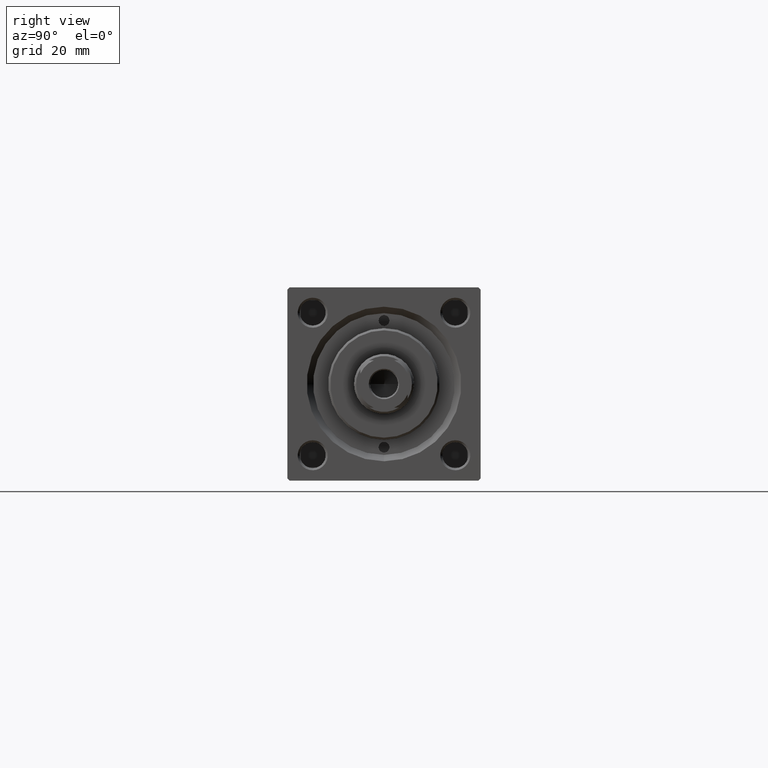
[diagram: clean part render]
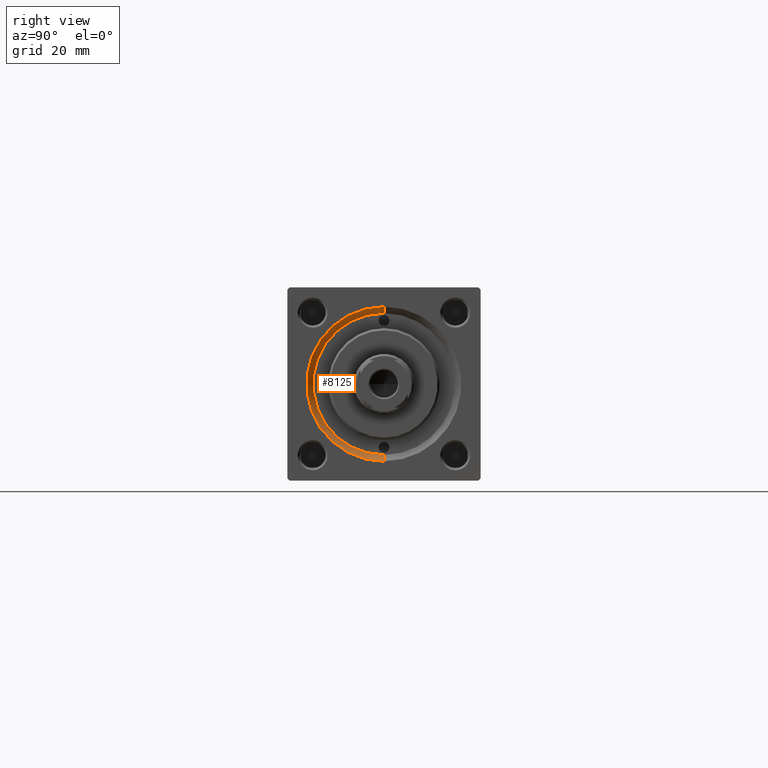
[diagram: same view with one face highlighted and labeled with its STEP entity id]
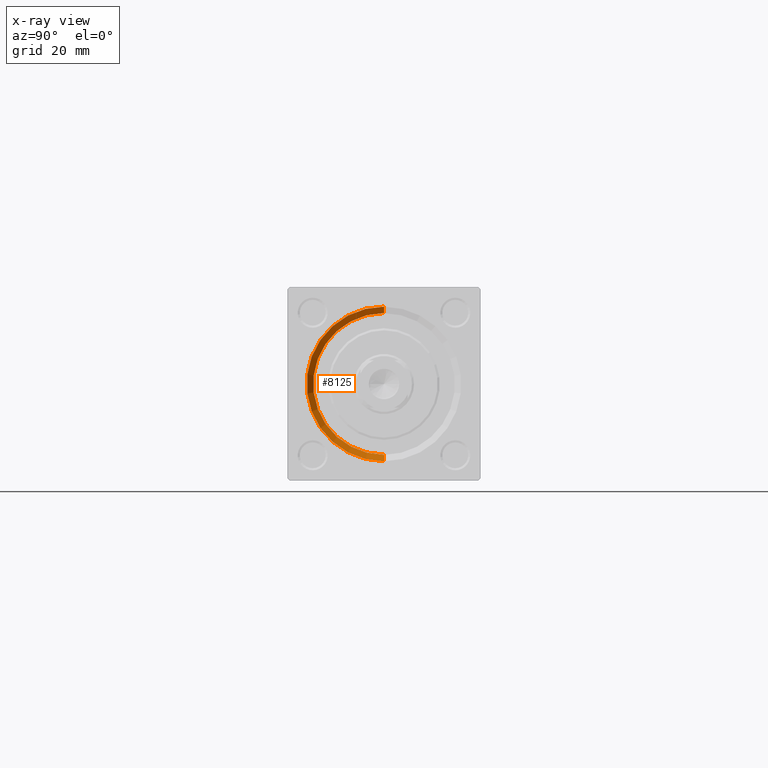
[diagram: x-ray of the same camera — body ghosted, the highlighted face saturated]
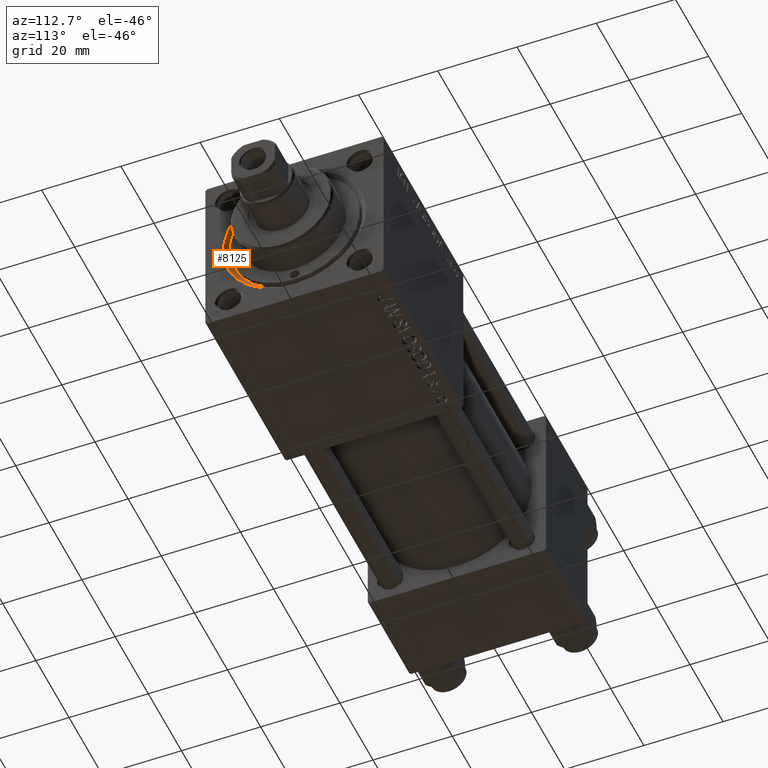
[diagram: same view with one face highlighted and labeled with its STEP entity id]
A machine part, right view. The second image highlights one B-rep face of the part: STEP entity #8125.
The next image is the same camera in x-ray: the body ghosted, the highlighted face saturated — about 0% of this face is hidden behind the body in this view.
A second angle (auxiliary view) of the same face is appended — the face is thin or edge-on in the first view.
In plain terms, the highlighted conical surface has half-angle 45 deg.
Its self-contained STEP definition (entity closure, byte-faithful):
#966 = DIRECTION ( 'NONE',  ( 0.000000000000000000, 0.000000000000000000, 1.000000000000000000 ) ) ;
#1674 = EDGE_CURVE ( 'NONE', #9480, #6352, #10566, .T. ) ;
#2522 = AXIS2_PLACEMENT_3D ( 'NONE', #35335, #8842, #966 ) ;
#3332 = FACE_OUTER_BOUND ( 'NONE', #36862, .T. ) ;
#4951 = CIRCLE ( 'NONE', #2522, 16.50000000000000000 ) ;
#6125 = VERTEX_POINT ( 'NONE', #36487 ) ;
#6352 = VERTEX_POINT ( 'NONE', #7720 ) ;
#6471 = LINE ( 'NONE', #33446, #42350 ) ;
#7720 = CARTESIAN_POINT ( 'NONE',  ( 123.0000000000000142, 2.204364238465235822E-15, 18.00000000000000355 ) ) ;
#8125 = ADVANCED_FACE ( 'NONE', ( #3332 ), #37434, .F. ) ;
#8842 = DIRECTION ( 'NONE',  ( 1.000000000000000000, 0.000000000000000000, 0.000000000000000000 ) ) ;
#9480 = VERTEX_POINT ( 'NONE', #13185 ) ;
#10020 = CARTESIAN_POINT ( 'NONE',  ( 121.5000000000000142, 2.020667218593133100E-15, 16.50000000000000000 ) ) ;
#10566 = CIRCLE ( 'NONE', #37405, 18.00000000000000355 ) ;
#11348 = EDGE_CURVE ( 'NONE', #6125, #6352, #44894, .T. ) ;
#13185 = CARTESIAN_POINT ( 'NONE',  ( 123.0000000000000142, 0.000000000000000000, -18.00000000000000355 ) ) ;
#15057 = DIRECTION ( 'NONE',  ( 1.000000000000000000, 0.000000000000000000, 0.000000000000000000 ) ) ;
#15076 = ORIENTED_EDGE ( 'NONE', *, *, #21964, .F. ) ;
#15519 = AXIS2_PLACEMENT_3D ( 'NONE', #49931, #15057, #30570 ) ;
#18314 = EDGE_CURVE ( 'NONE', #29906, #9480, #6471, .T. ) ;
#18424 = CARTESIAN_POINT ( 'NONE',  ( 121.5000000000000142, 0.000000000000000000, -16.50000000000000000 ) ) ;
#21964 = EDGE_CURVE ( 'NONE', #6125, #29906, #4951, .T. ) ;
#27180 = DIRECTION ( 'NONE',  ( 0.000000000000000000, 0.000000000000000000, 1.000000000000000000 ) ) ;
#27663 = CARTESIAN_POINT ( 'NONE',  ( 123.0000000000000142, 0.000000000000000000, 0.000000000000000000 ) ) ;
#28854 = DIRECTION ( 'NONE',  ( 0.7071067811865474617, 8.659560562354932858E-17, 0.7071067811865474617 ) ) ;
#29906 = VERTEX_POINT ( 'NONE', #18424 ) ;
#30444 = ORIENTED_EDGE ( 'NONE', *, *, #11348, .T. ) ;
#30570 = DIRECTION ( 'NONE',  ( 0.000000000000000000, 0.000000000000000000, -1.000000000000000000 ) ) ;
#33446 = CARTESIAN_POINT ( 'NONE',  ( 121.5000000000000142, 0.000000000000000000, -16.50000000000000000 ) ) ;
#35335 = CARTESIAN_POINT ( 'NONE',  ( 121.5000000000000142, 0.000000000000000000, 0.000000000000000000 ) ) ;
#36487 = CARTESIAN_POINT ( 'NONE',  ( 121.5000000000000142, 2.020667218593133100E-15, 16.50000000000000000 ) ) ;
#36862 = EDGE_LOOP ( 'NONE', ( #15076, #30444, #49143, #39735 ) ) ;
#37405 = AXIS2_PLACEMENT_3D ( 'NONE', #27663, #46265, #27180 ) ;
#37434 = CONICAL_SURFACE ( 'NONE', #15519, 16.50000000000000000, 0.7853981633974482790 ) ;
#37600 = VECTOR ( 'NONE', #28854, 1000.000000000000114 ) ;
#39735 = ORIENTED_EDGE ( 'NONE', *, *, #18314, .F. ) ;
#42350 = VECTOR ( 'NONE', #48991, 1000.000000000000114 ) ;
#44894 = LINE ( 'NONE', #10020, #37600 ) ;
#46265 = DIRECTION ( 'NONE',  ( -1.000000000000000000, 0.000000000000000000, -0.000000000000000000 ) ) ;
#48991 = DIRECTION ( 'NONE',  ( 0.7071067811865474617, 0.000000000000000000, -0.7071067811865474617 ) ) ;
#49143 = ORIENTED_EDGE ( 'NONE', *, *, #1674, .F. ) ;
#49931 = CARTESIAN_POINT ( 'NONE',  ( 121.5000000000000142, 0.000000000000000000, 0.000000000000000000 ) ) ;